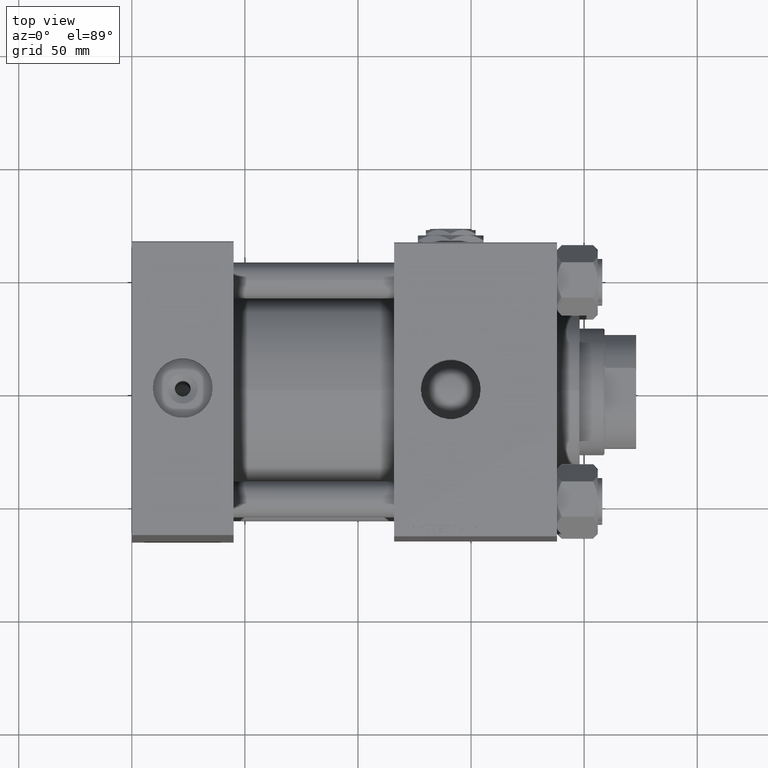
[diagram: clean part render]
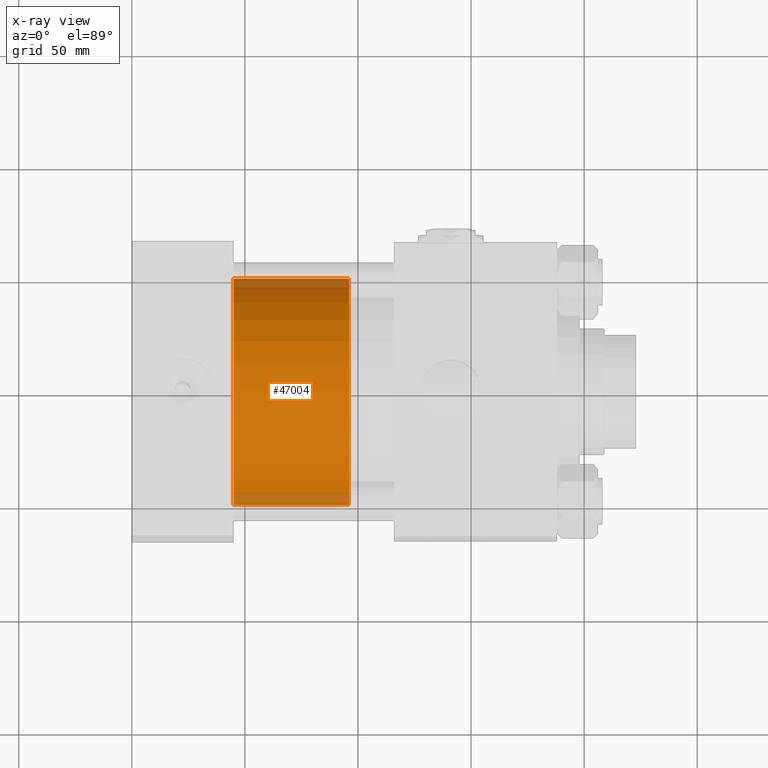
[diagram: x-ray — body ghosted, one internal face saturated and labeled with its STEP entity id]
A machine part, top view, then the same camera in x-ray: the body is ghosted and one INTERNAL B-rep face — a face not visible from any outside direction — is saturated and labeled: STEP entity #47004.
In plain terms, the highlighted cylindrical surface (partial cylindrical patch) has radius 50 mm, axis along (-1, 0, 0).
Its self-contained STEP definition (entity closure, byte-faithful):
#436 = CARTESIAN_POINT ( 'NONE',  ( 0.000000000000000000, 0.000000000000000000, 0.000000000000000000 ) ) ;
#4066 = EDGE_CURVE ( 'NONE', #21381, #27921, #10760, .T. ) ;
#4238 = EDGE_CURVE ( 'NONE', #23786, #38828, #31353, .T. ) ;
#4416 = EDGE_CURVE ( 'NONE', #38828, #27921, #36128, .T. ) ;
#6292 = ORIENTED_EDGE ( 'NONE', *, *, #4066, .F. ) ;
#6329 = FACE_OUTER_BOUND ( 'NONE', #21609, .T. ) ;
#9162 = CARTESIAN_POINT ( 'NONE',  ( -50.00000000000000000, 0.000000000000000000, 0.000000000000000000 ) ) ;
#10760 = LINE ( 'NONE', #50658, #34415 ) ;
#15311 = DIRECTION ( 'NONE',  ( -0.000000000000000000, -0.000000000000000000, -1.000000000000000000 ) ) ;
#16105 = CARTESIAN_POINT ( 'NONE',  ( -50.00000000000000000, 0.000000000000000000, 51.00000000000000000 ) ) ;
#16283 = DIRECTION ( 'NONE',  ( 1.000000000000000000, 0.000000000000000000, 0.000000000000000000 ) ) ;
#17659 = DIRECTION ( 'NONE',  ( -0.000000000000000000, -0.000000000000000000, -1.000000000000000000 ) ) ;
#17774 = CARTESIAN_POINT ( 'NONE',  ( 50.00000000000000000, 6.123233995736766085E-15, 51.00000000000000000 ) ) ;
#20121 = AXIS2_PLACEMENT_3D ( 'NONE', #436, #24480, #16283 ) ;
#20850 = CIRCLE ( 'NONE', #38549, 50.00000000000000000 ) ;
#20917 = ORIENTED_EDGE ( 'NONE', *, *, #4238, .T. ) ;
#21001 = CARTESIAN_POINT ( 'NONE',  ( 50.00000000000000000, 6.123233995736766085E-15, 0.000000000000000000 ) ) ;
#21381 = VERTEX_POINT ( 'NONE', #17774 ) ;
#21609 = EDGE_LOOP ( 'NONE', ( #6292, #46675, #20917, #37224 ) ) ;
#23786 = VERTEX_POINT ( 'NONE', #16105 ) ;
#24480 = DIRECTION ( 'NONE',  ( 0.000000000000000000, 0.000000000000000000, 1.000000000000000000 ) ) ;
#26093 = CARTESIAN_POINT ( 'NONE',  ( 0.000000000000000000, 0.000000000000000000, 51.00000000000000000 ) ) ;
#26935 = DIRECTION ( 'NONE',  ( -1.000000000000000000, 0.000000000000000000, 0.000000000000000000 ) ) ;
#27921 = VERTEX_POINT ( 'NONE', #21001 ) ;
#28827 = DIRECTION ( 'NONE',  ( 0.000000000000000000, 0.000000000000000000, 1.000000000000000000 ) ) ;
#31353 = LINE ( 'NONE', #48015, #42865 ) ;
#34415 = VECTOR ( 'NONE', #17659, 1000.000000000000000 ) ;
#36128 = CIRCLE ( 'NONE', #20121, 50.00000000000000000 ) ;
#36743 = DIRECTION ( 'NONE',  ( 1.000000000000000000, 0.000000000000000000, 0.000000000000000000 ) ) ;
#37224 = ORIENTED_EDGE ( 'NONE', *, *, #4416, .T. ) ;
#38549 = AXIS2_PLACEMENT_3D ( 'NONE', #26093, #28827, #36743 ) ;
#38828 = VERTEX_POINT ( 'NONE', #9162 ) ;
#39002 = DIRECTION ( 'NONE',  ( -0.000000000000000000, -0.000000000000000000, -1.000000000000000000 ) ) ;
#39355 = AXIS2_PLACEMENT_3D ( 'NONE', #46500, #15311, #26935 ) ;
#42865 = VECTOR ( 'NONE', #39002, 1000.000000000000000 ) ;
#46500 = CARTESIAN_POINT ( 'NONE',  ( 0.000000000000000000, 0.000000000000000000, 51.00000000000000000 ) ) ;
#46675 = ORIENTED_EDGE ( 'NONE', *, *, #51736, .F. ) ;
#47004 = ADVANCED_FACE ( 'NONE', ( #6329 ), #50726, .T. ) ;
#48015 = CARTESIAN_POINT ( 'NONE',  ( -50.00000000000000000, 0.000000000000000000, 51.00000000000000000 ) ) ;
#50658 = CARTESIAN_POINT ( 'NONE',  ( 50.00000000000000000, 6.123233995736766085E-15, 51.00000000000000000 ) ) ;
#50726 = CYLINDRICAL_SURFACE ( 'NONE', #39355, 50.00000000000000000 ) ;
#51736 = EDGE_CURVE ( 'NONE', #23786, #21381, #20850, .T. ) ;